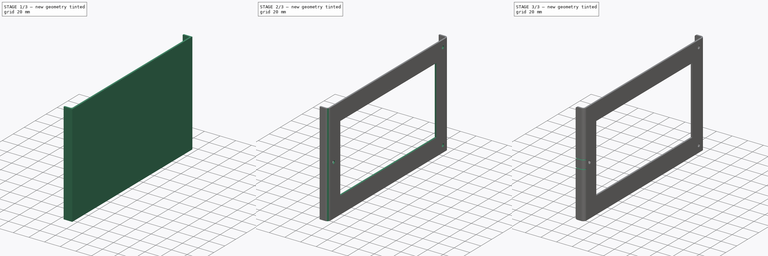
[diagram: build sequence overview — one tinted view per stage of 3, left to right]
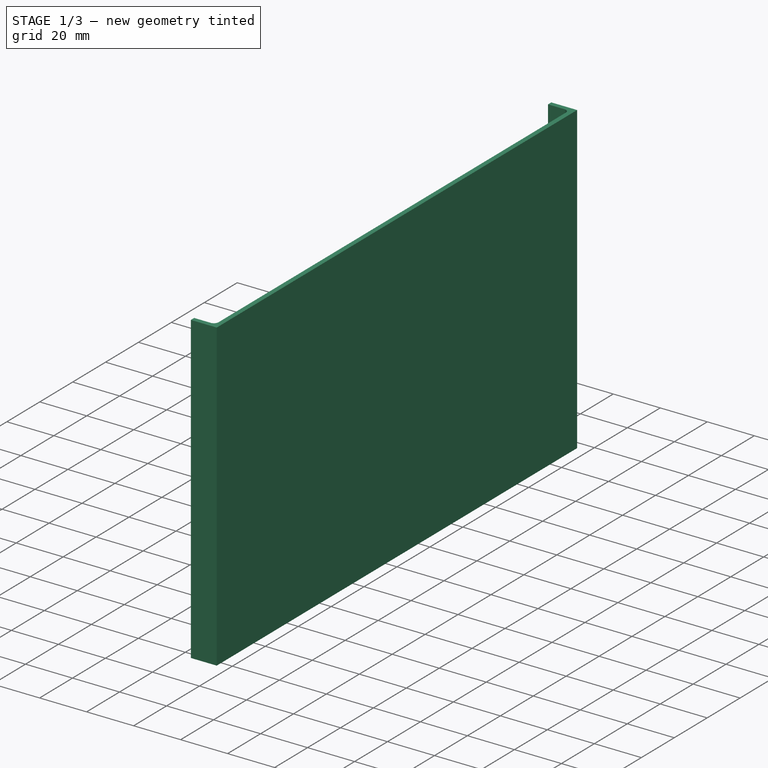
[diagram: stage 1 of 3 — iso view after this stage's code; geometry added in this stage tinted green]
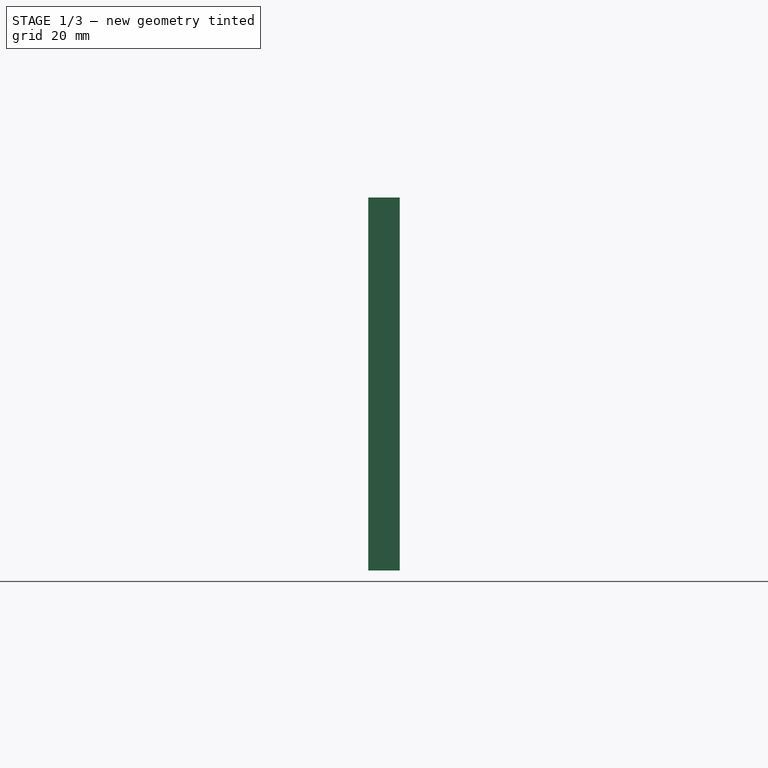
[diagram: stage 1 of 3 — front view after this stage's code; geometry added in this stage tinted green]
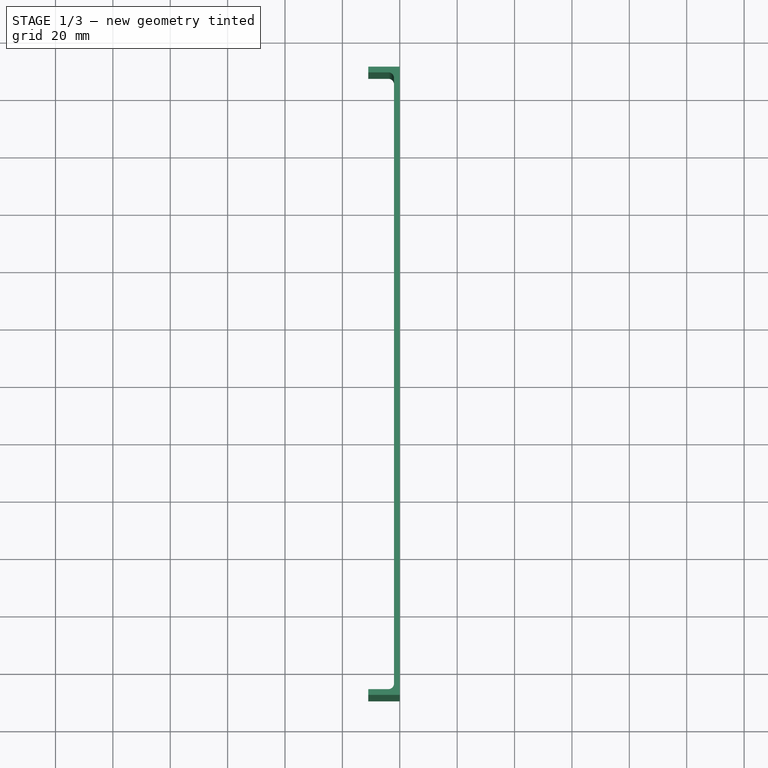
[diagram: stage 1 of 3 — top view after this stage's code; geometry added in this stage tinted green]
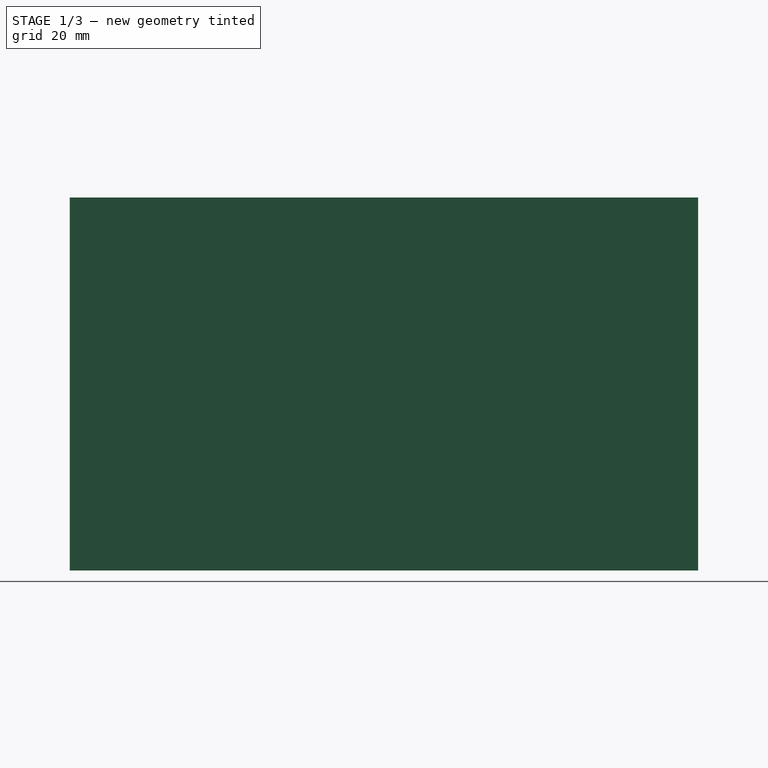
[diagram: stage 1 of 3 — right view after this stage's code; geometry added in this stage tinted green]
FCSTD DOCUMENT  (FreeCAD 0.14R3310 (Git))
Label: 21. APOYO CAMA
License: CC-BY 3.0
LicenseURL: http://creativecommons.org/licenses/by/3.0/
objects: Sketcher::SketchObject×3, PartDesign::Fillet×3, PartDesign::Pocket×2, PartDesign::Pad×1
note: 12 computed .brp shape members not serialized (recipe doc carries the construction recipe); baked Part::Feature solids carry a one-line shape summary decoded from their .brp

FEATURE [Sketcher::SketchObject] Sketch
  sketch-geometry (8):
    g0: LineSegment StartX=0 StartY=109.5 StartZ=0 EndX=-11 EndY=109.5 EndZ=0
    g1: LineSegment StartX=0 StartY=-109.5 StartZ=0 EndX=-11 EndY=-109.5 EndZ=0
    g2: LineSegment StartX=0 StartY=109.5 StartZ=0 EndX=0 EndY=-109.5 EndZ=0
    g3: LineSegment StartX=-11 StartY=109.5 StartZ=0 EndX=-11 EndY=107.5 EndZ=0
    g4: LineSegment StartX=-11 StartY=107.5 StartZ=0 EndX=-2 EndY=107.5 EndZ=0
    g5: LineSegment StartX=-2 StartY=107.5 StartZ=0 EndX=-2 EndY=-107.5 EndZ=0
    g6: LineSegment StartX=-2 StartY=-107.5 StartZ=0 EndX=-11 EndY=-107.5 EndZ=0
    g7: LineSegment StartX=-11 StartY=-107.5 StartZ=0 EndX=-11 EndY=-109.5 EndZ=0
  constraints (23):
    c: PointOnObject(g0,g-2)
    c: Horizontal(g0)
    c: PointOnObject(g1,g-2)
    c: Horizontal(g1)
    c: Distance(g0) = 11
    c: Symmetric(g1,g0,g-1)
    c: Coincident(g2,g0)
    c: Coincident(g2,g1)
    c: Distance(g2) = 219
    c: Coincident(g0,g3)
    c: Vertical(g3)
    c: Coincident(g3,g4)
    c: Horizontal(g4)
    c: Coincident(g4,g5)
    c: Vertical(g5)
    c: Coincident(g5,g6)
    c: Horizontal(g6)
    c: Coincident(g6,g7)
    c: Coincident(g7,g1)
    c: Vertical(g7)
    c: Distance(g6,g1) = 2
    c: Distance(g5,g2) = 2
    c: Distance(g4,g0) = 2
FEATURE [PartDesign::Pad] Pad
  Length = 130
  Length2 = 100
  Sketch = -> Sketch
  Type = 0
FEATURE [PartDesign::Fillet] Fillet
  Base = -> Pad [Edge14,Edge11]
  Radius = 2
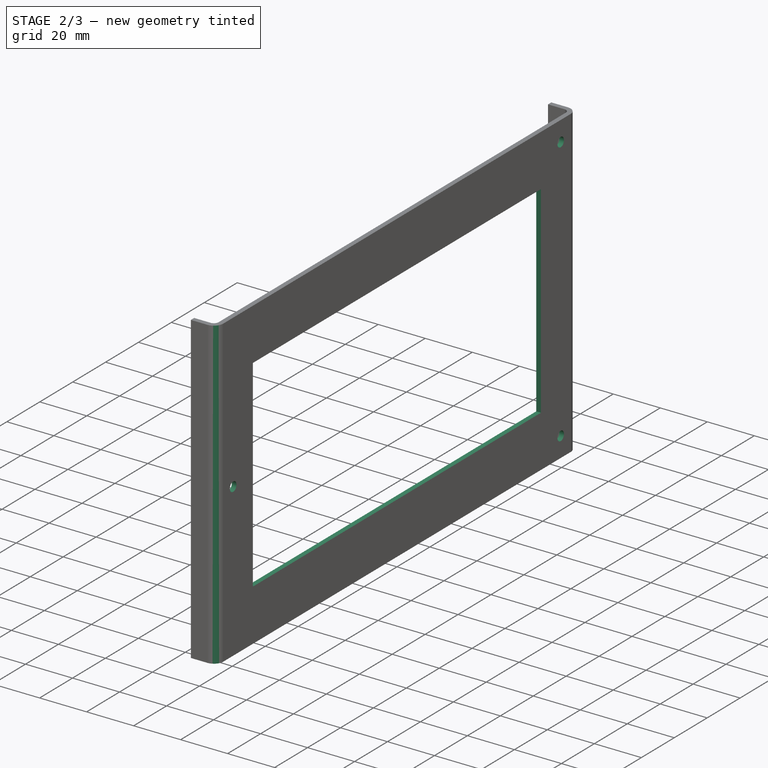
[diagram: stage 2 of 3 — iso view after this stage's code; geometry added in this stage tinted green]
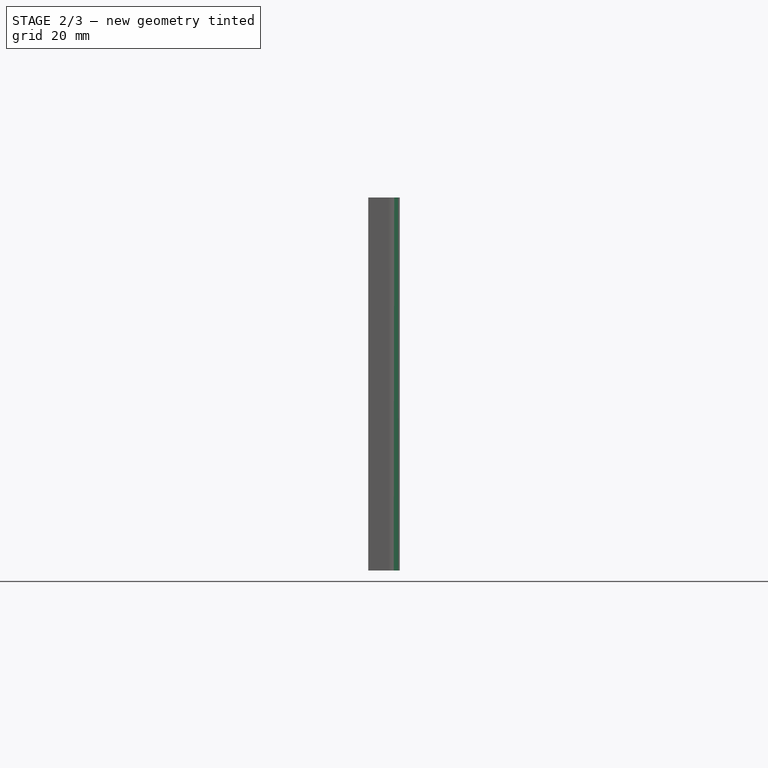
[diagram: stage 2 of 3 — front view after this stage's code; geometry added in this stage tinted green]
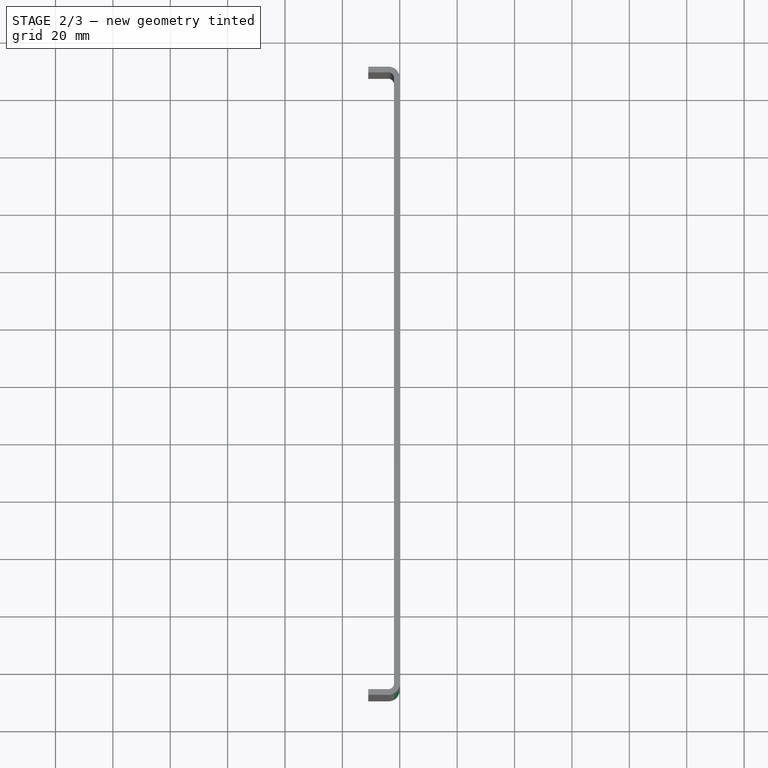
[diagram: stage 2 of 3 — top view after this stage's code; geometry added in this stage tinted green]
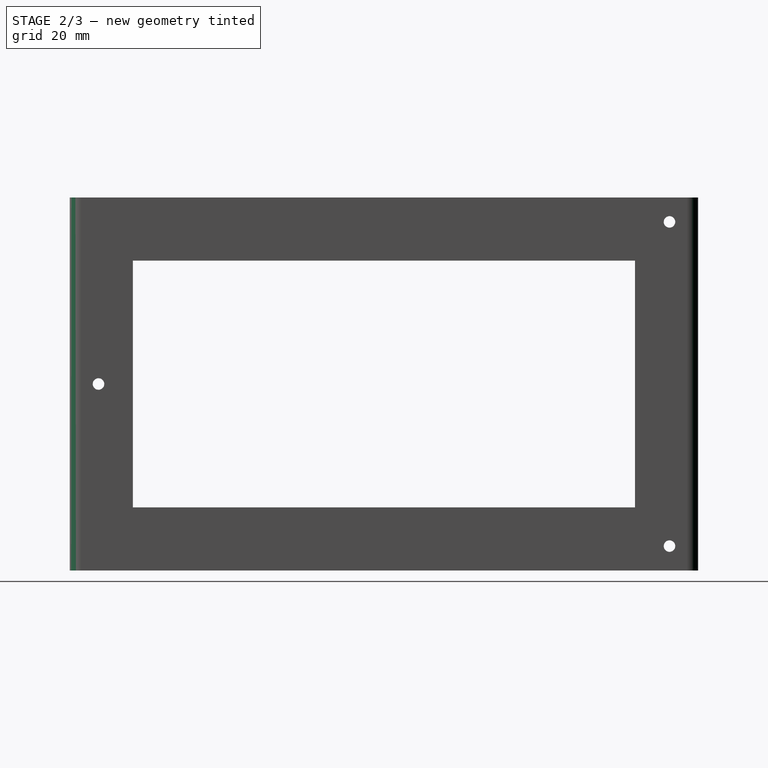
[diagram: stage 2 of 3 — right view after this stage's code; geometry added in this stage tinted green]
FEATURE [PartDesign::Fillet] Fillet001
  Base = -> Fillet [Edge26,Edge28]
  Radius = 4
FEATURE [Sketcher::SketchObject] Sketch001
  Placement = pos=(0,0,0) rot=(0.57735,0.57735,0.57735;2.0944rad)
  Support = -> Fillet001 [Face5]
  sketch-geometry (7):
    g0: LineSegment StartX=-87.5 StartY=108 StartZ=0 EndX=87.5 EndY=108 EndZ=0
    g1: LineSegment StartX=87.5 StartY=108 StartZ=0 EndX=87.5 EndY=22 EndZ=0
    g2: LineSegment StartX=87.5 StartY=22 StartZ=0 EndX=-87.5 EndY=22 EndZ=0
    g3: LineSegment StartX=-87.5 StartY=22 StartZ=0 EndX=-87.5 EndY=108 EndZ=0
    g4: Circle CenterX=99.5 CenterY=8.5 CenterZ=0 NormalX=0 NormalY=0 NormalZ=1 Radius=2
    g5: Circle CenterX=99.5 CenterY=121.5 CenterZ=0 NormalX=0 NormalY=0 NormalZ=1 Radius=2
    g6: Circle CenterX=-99.5 CenterY=65 CenterZ=0 NormalX=0 NormalY=0 NormalZ=1 Radius=2
  constraints (21):
    c: Coincident(g0,g1)
    c: Coincident(g1,g2)
    c: Coincident(g2,g3)
    c: Coincident(g3,g0)
    c: Horizontal(g0)
    c: Horizontal(g2)
    c: Vertical(g1)
    c: Vertical(g3)
    c: Symmetric(g1,g2,g-2)
    c: DistanceY(g-1,g1) = 22
    c: Distance(g1) = 86
    c: Distance(g0) = 175
    c: Distance(g4,g1) = 12
    c: DistanceY(g-1,g4) = 8.5
    c: Radius(g4) = 2
    c: Distance(g5,g1) = 12
    c: Equal(g5,g4)
    c: Distance(g5,g4) = 113
    c: Equal(g6,g5)
    c: Distance(g6,g3) = 12
    c: DistanceY(g-1,g6) = 65
FEATURE [PartDesign::Pocket] Pocket
  Length = 5
  Sketch = -> Sketch001
  Type = 0
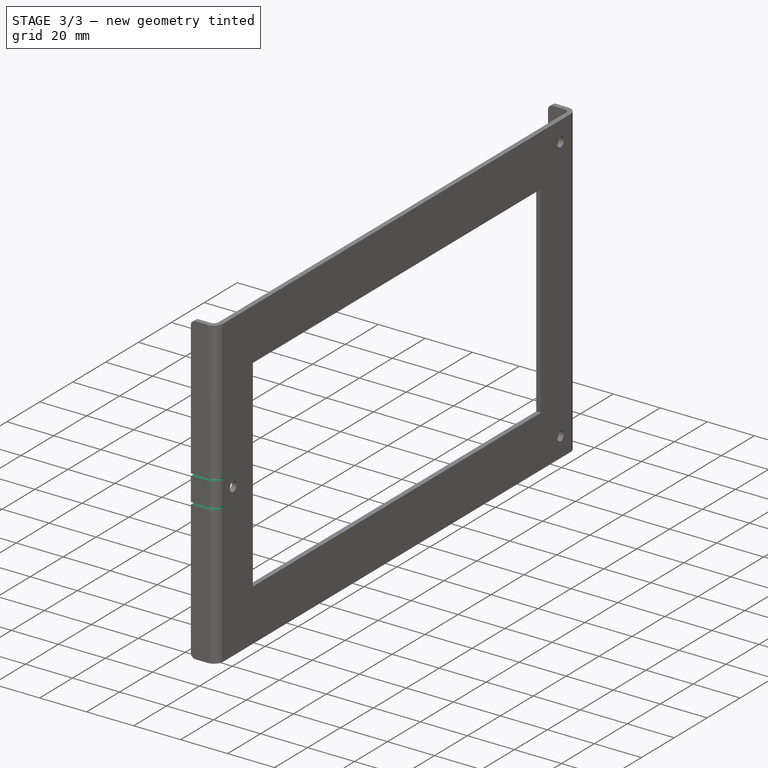
[diagram: stage 3 of 3 — iso view after this stage's code; geometry added in this stage tinted green]
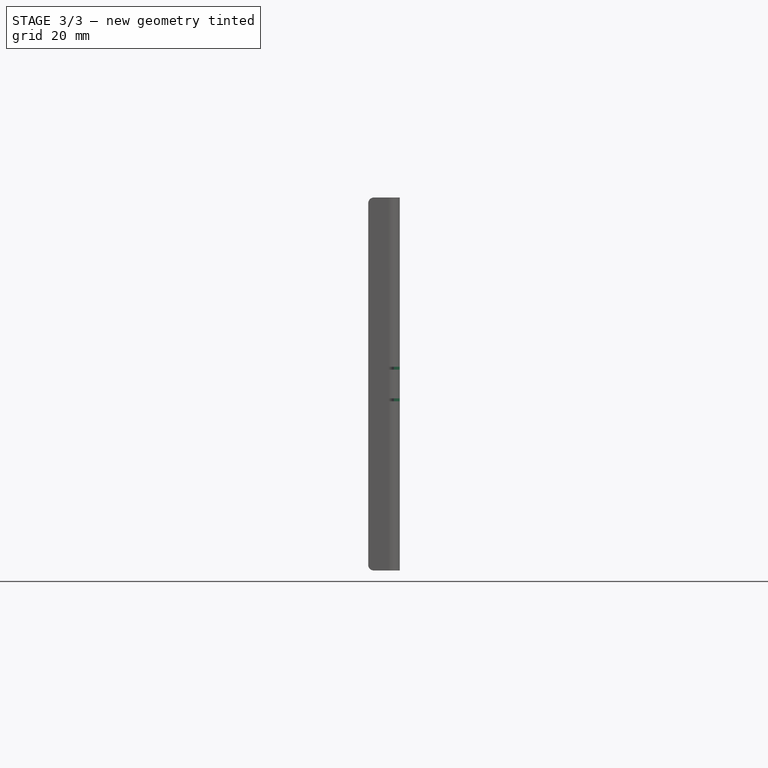
[diagram: stage 3 of 3 — front view after this stage's code; geometry added in this stage tinted green]
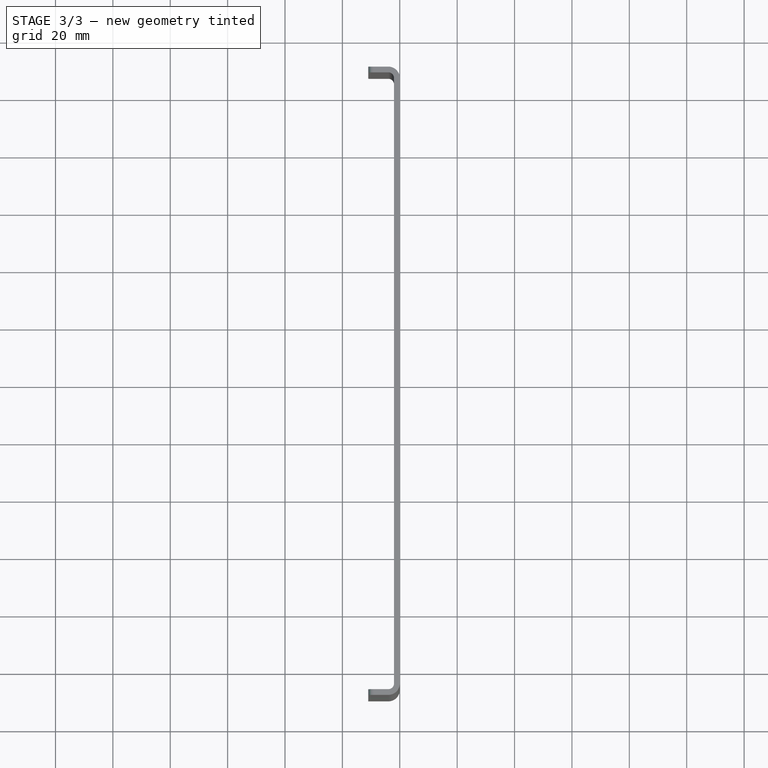
[diagram: stage 3 of 3 — top view after this stage's code; geometry added in this stage tinted green]
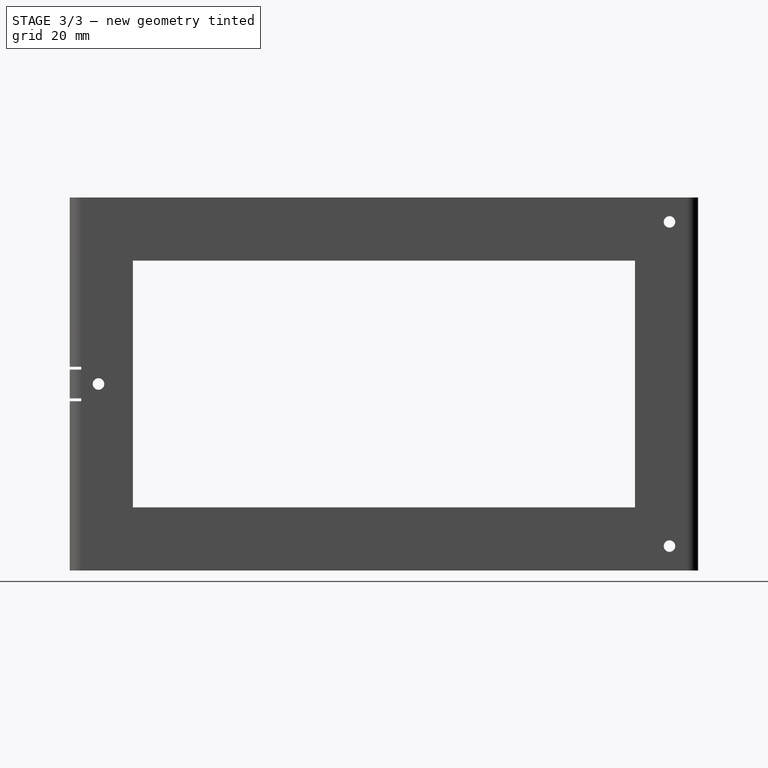
[diagram: stage 3 of 3 — right view after this stage's code; geometry added in this stage tinted green]
FEATURE [PartDesign::Fillet] Fillet002
  Base = -> Pocket [Edge10,Edge47,Edge3,Edge19]
  Radius = 2
FEATURE [Sketcher::SketchObject] Sketch002
  Placement = pos=(0,-109.5,0) rot=(1,0,0;1.5708rad)
  Support = -> Fillet002 [Face10]
  sketch-geometry (8):
    g0: LineSegment StartX=-15 StartY=60 StartZ=0 EndX=0 EndY=60 EndZ=0
    g1: LineSegment StartX=0 StartY=60 StartZ=0 EndX=0 EndY=59 EndZ=0
    g2: LineSegment StartX=0 StartY=59 StartZ=0 EndX=-15 EndY=59 EndZ=0
    g3: LineSegment StartX=-15 StartY=59 StartZ=0 EndX=-15 EndY=60 EndZ=0
    g4: LineSegment StartX=-15 StartY=71 StartZ=0 EndX=0 EndY=71 EndZ=0
    g5: LineSegment StartX=0 StartY=71 StartZ=0 EndX=0 EndY=70 EndZ=0
    g6: LineSegment StartX=0 StartY=70 StartZ=0 EndX=-15 EndY=70 EndZ=0
    g7: LineSegment StartX=-15 StartY=70 StartZ=0 EndX=-15 EndY=71 EndZ=0
  constraints (24):
    c: Coincident(g0,g1)
    c: Coincident(g1,g2)
    c: Coincident(g2,g3)
    c: Coincident(g3,g0)
    c: Horizontal(g0)
    c: Horizontal(g2)
    c: Vertical(g1)
    c: Vertical(g3)
    c: PointOnObject(g1,g-2)
    c: Coincident(g4,g5)
    c: Coincident(g5,g6)
    c: Coincident(g6,g7)
    c: Coincident(g7,g4)
    c: Horizontal(g4)
    c: Horizontal(g6)
    c: Vertical(g5)
    c: Vertical(g7)
    c: PointOnObject(g5,g-2)
    c: Distance(g5) = 1
    c: Distance(g1) = 1
    c: DistanceY(g-1,g1) = 59
    c: Distance(g0,g5) = 10
    c: Distance(g0) = 15
    c: Distance(g4) = 15
FEATURE [PartDesign::Pocket] Pocket001
  Length = 4
  Sketch = -> Sketch002
  Type = 0
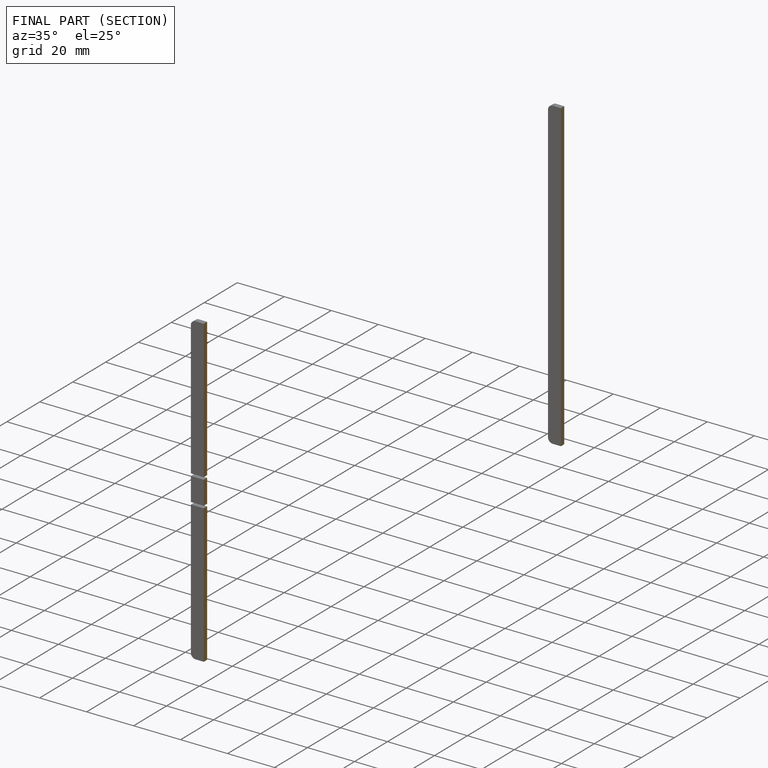
[diagram: finished part — half-section view (interior)]
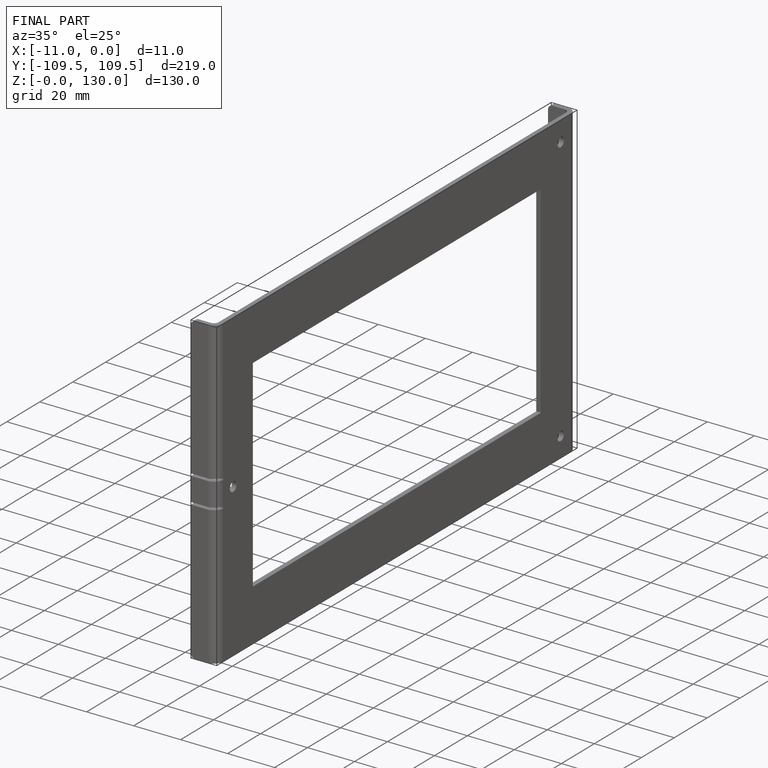
[diagram: finished part — iso view with bounding-box wireframe]
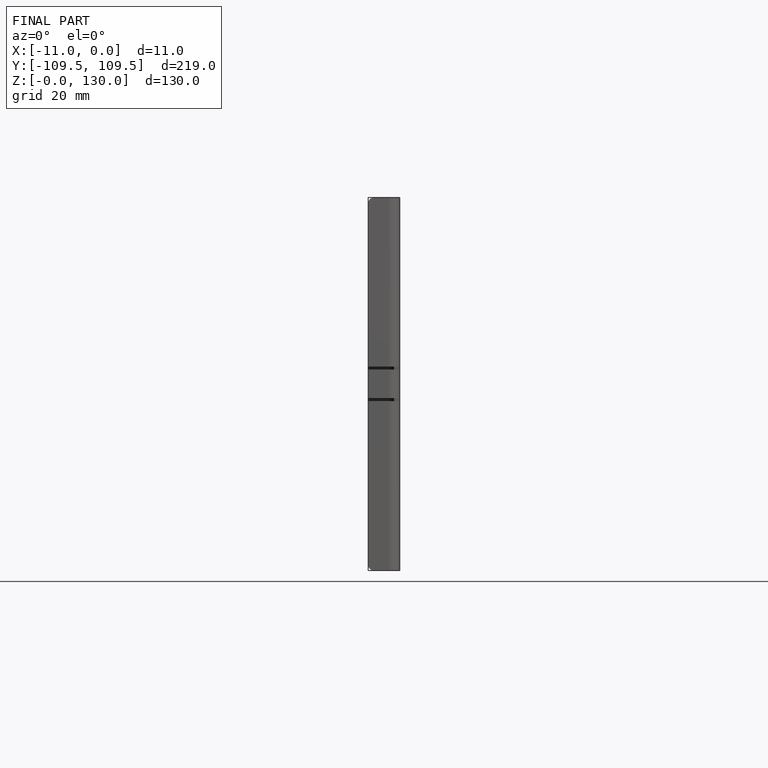
[diagram: finished part — front view with bounding-box wireframe]
